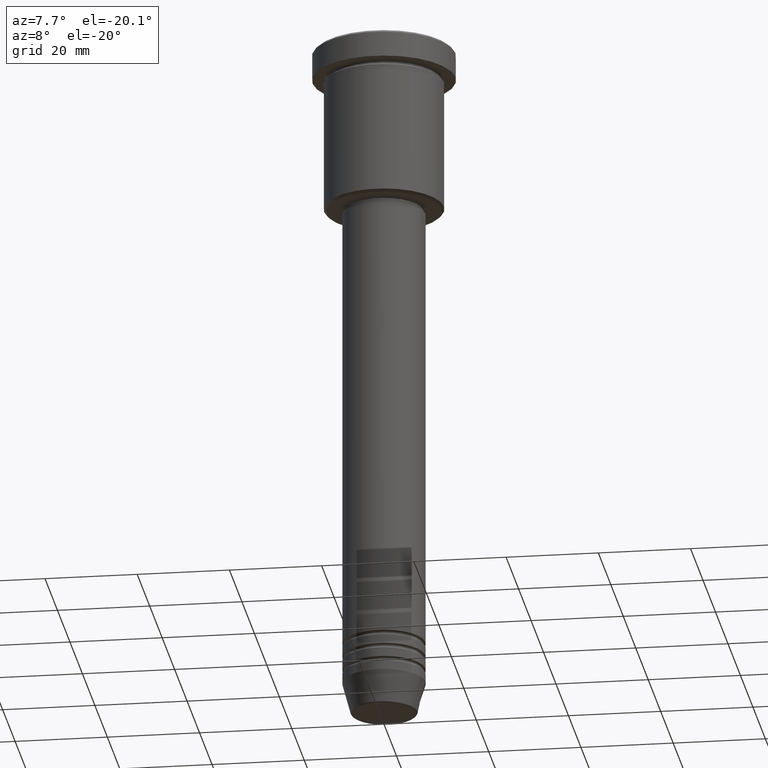
[diagram: clean part render]
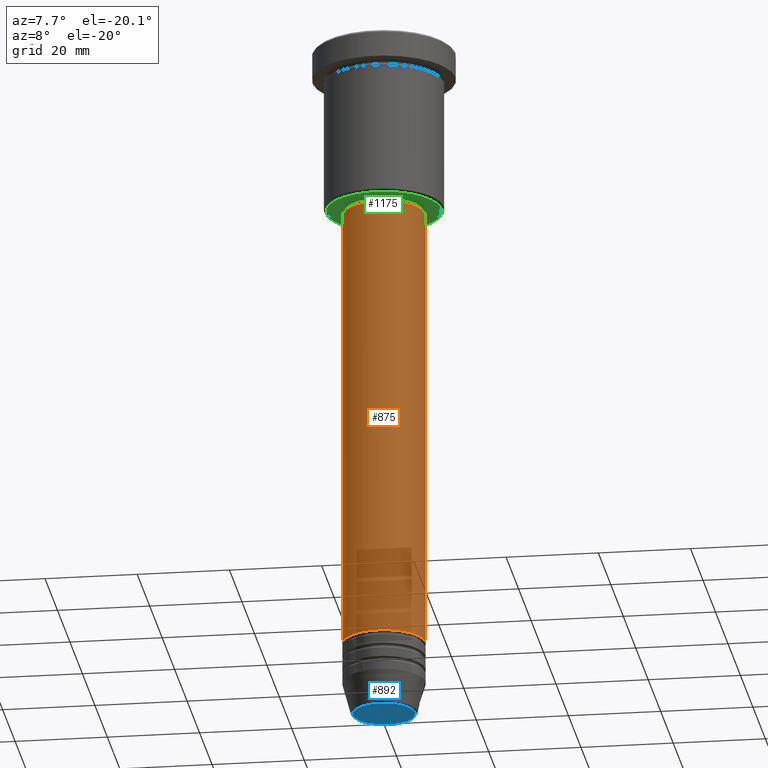
[diagram: same view with three faces highlighted in distinct colors, each labeled with its STEP entity id]
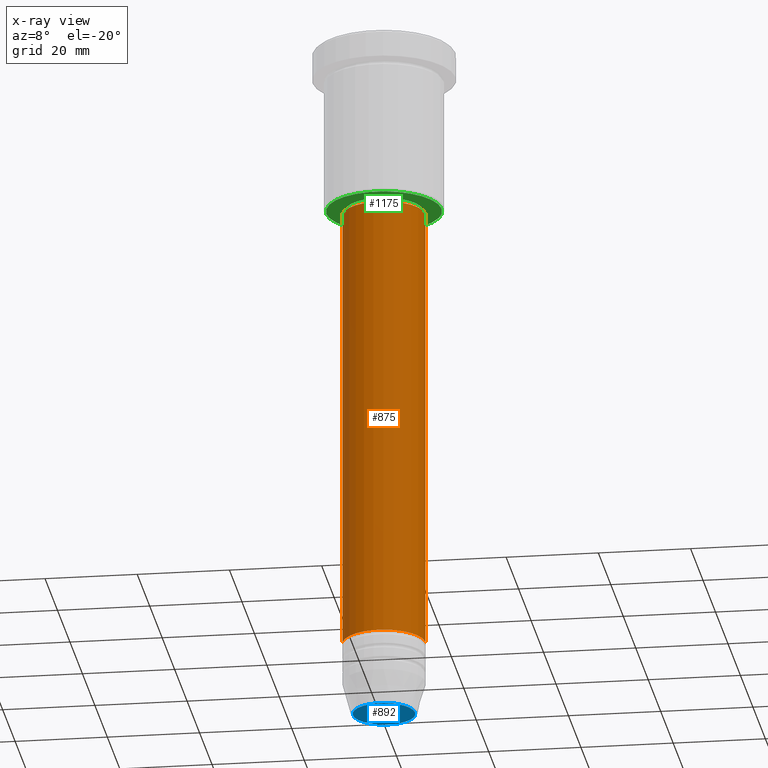
[diagram: x-ray of the same camera — body ghosted, the three highlighted faces saturated]
A machine part, auxiliary view with three faces highlighted in distinct colors.
The next image is the same camera in x-ray (body ghosted, the three faces saturated) — at least one of them is partly hidden behind the body in this view.
Their STEP definitions:

[orange] entity #875 — the highlighted cylindrical surface (partial cylindrical patch) has radius 9 mm, axis along (-0, -0, 1).
#56 = CIRCLE ( 'NONE', #682, 9.000000000000000000 ) ;
#94 = ORIENTED_EDGE ( 'NONE', *, *, #670, .F. ) ;
#127 = DIRECTION ( 'NONE',  ( -0.000000000000000000, -0.000000000000000000, 1.000000000000000000 ) ) ;
#136 = AXIS2_PLACEMENT_3D ( 'NONE', #300, #1021, #936 ) ;
#156 = CARTESIAN_POINT ( 'NONE',  ( 9.000000000000000000, 0.000000000000000000, -37.00000000000001421 ) ) ;
#196 = CIRCLE ( 'NONE', #136, 9.000000000000000000 ) ;
#199 = VERTEX_POINT ( 'NONE', #321 ) ;
#208 = LINE ( 'NONE', #939, #1043 ) ;
#246 = CARTESIAN_POINT ( 'NONE',  ( 9.000000000000000000, 0.000000000000000000, 0.000000000000000000 ) ) ;
#269 = CARTESIAN_POINT ( 'NONE',  ( 0.000000000000000000, 0.000000000000000000, -37.00000000000001421 ) ) ;
#275 = VERTEX_POINT ( 'NONE', #156 ) ;
#285 = DIRECTION ( 'NONE',  ( -0.000000000000000000, -0.000000000000000000, 1.000000000000000000 ) ) ;
#300 = CARTESIAN_POINT ( 'NONE',  ( 0.000000000000000000, 0.000000000000000000, -134.9999999999999716 ) ) ;
#321 = CARTESIAN_POINT ( 'NONE',  ( -9.000000000000000000, 1.102182119232617714E-15, -37.00000000000001421 ) ) ;
#348 = CARTESIAN_POINT ( 'NONE',  ( -9.000000000000000000, 1.102182119232617714E-15, -134.9999999999999716 ) ) ;
#362 = EDGE_LOOP ( 'NONE', ( #94, #877, #694, #599 ) ) ;
#433 = AXIS2_PLACEMENT_3D ( 'NONE', #508, #856, #1143 ) ;
#508 = CARTESIAN_POINT ( 'NONE',  ( 0.000000000000000000, 0.000000000000000000, 0.000000000000000000 ) ) ;
#566 = VECTOR ( 'NONE', #602, 1000.000000000000000 ) ;
#591 = FACE_OUTER_BOUND ( 'NONE', #362, .T. ) ;
#599 = ORIENTED_EDGE ( 'NONE', *, *, #1059, .F. ) ;
#602 = DIRECTION ( 'NONE',  ( -0.000000000000000000, -0.000000000000000000, 1.000000000000000000 ) ) ;
#670 = EDGE_CURVE ( 'NONE', #808, #199, #208, .T. ) ;
#682 = AXIS2_PLACEMENT_3D ( 'NONE', #269, #285, #1016 ) ;
#686 = CYLINDRICAL_SURFACE ( 'NONE', #433, 9.000000000000000000 ) ;
#694 = ORIENTED_EDGE ( 'NONE', *, *, #742, .T. ) ;
#695 = LINE ( 'NONE', #246, #566 ) ;
#742 = EDGE_CURVE ( 'NONE', #1112, #275, #695, .T. ) ;
#808 = VERTEX_POINT ( 'NONE', #348 ) ;
#824 = CARTESIAN_POINT ( 'NONE',  ( 9.000000000000000000, 0.000000000000000000, -134.9999999999999716 ) ) ;
#856 = DIRECTION ( 'NONE',  ( -0.000000000000000000, -0.000000000000000000, 1.000000000000000000 ) ) ;
#875 = ADVANCED_FACE ( 'NONE', ( #591 ), #686, .T. ) ;
#877 = ORIENTED_EDGE ( 'NONE', *, *, #1183, .T. ) ;
#936 = DIRECTION ( 'NONE',  ( 1.000000000000000000, 0.000000000000000000, 0.000000000000000000 ) ) ;
#939 = CARTESIAN_POINT ( 'NONE',  ( -9.000000000000000000, 1.102182119232617714E-15, 0.000000000000000000 ) ) ;
#1016 = DIRECTION ( 'NONE',  ( 1.000000000000000000, 0.000000000000000000, 0.000000000000000000 ) ) ;
#1021 = DIRECTION ( 'NONE',  ( -0.000000000000000000, -0.000000000000000000, 1.000000000000000000 ) ) ;
#1043 = VECTOR ( 'NONE', #127, 1000.000000000000000 ) ;
#1059 = EDGE_CURVE ( 'NONE', #199, #275, #56, .T. ) ;
#1112 = VERTEX_POINT ( 'NONE', #824 ) ;
#1143 = DIRECTION ( 'NONE',  ( 1.000000000000000000, 0.000000000000000000, 0.000000000000000000 ) ) ;
#1183 = EDGE_CURVE ( 'NONE', #808, #1112, #196, .T. ) ;

[blue] entity #892 — the highlighted planar face has unit normal (0, -0, 1).
#17 = CARTESIAN_POINT ( 'NONE',  ( 6.740692158992658278, 0.000000000000000000, -151.0000000000000284 ) ) ;
#192 = CIRCLE ( 'NONE', #487, 6.740692158992658278 ) ;
#193 = VERTEX_POINT ( 'NONE', #658 ) ;
#204 = DIRECTION ( 'NONE',  ( 0.000000000000000000, 0.000000000000000000, -1.000000000000000000 ) ) ;
#303 = PLANE ( 'NONE',  #1159 ) ;
#329 = DIRECTION ( 'NONE',  ( 1.000000000000000000, 0.000000000000000000, 0.000000000000000000 ) ) ;
#403 = CARTESIAN_POINT ( 'NONE',  ( 0.000000000000000000, 0.000000000000000000, -151.0000000000000284 ) ) ;
#487 = AXIS2_PLACEMENT_3D ( 'NONE', #817, #204, #1180 ) ;
#495 = DIRECTION ( 'NONE',  ( 1.000000000000000000, 0.000000000000000000, 0.000000000000000000 ) ) ;
#514 = CIRCLE ( 'NONE', #797, 6.740692158992658278 ) ;
#516 = EDGE_CURVE ( 'NONE', #1126, #193, #192, .T. ) ;
#579 = DIRECTION ( 'NONE',  ( 0.000000000000000000, 0.000000000000000000, -1.000000000000000000 ) ) ;
#658 = CARTESIAN_POINT ( 'NONE',  ( -6.740692158992658278, 8.550696569392685681E-16, -151.0000000000000284 ) ) ;
#662 = ORIENTED_EDGE ( 'NONE', *, *, #516, .T. ) ;
#782 = EDGE_LOOP ( 'NONE', ( #662, #1165 ) ) ;
#797 = AXIS2_PLACEMENT_3D ( 'NONE', #403, #579, #495 ) ;
#817 = CARTESIAN_POINT ( 'NONE',  ( 0.000000000000000000, 0.000000000000000000, -151.0000000000000284 ) ) ;
#852 = FACE_OUTER_BOUND ( 'NONE', #782, .T. ) ;
#892 = ADVANCED_FACE ( 'NONE', ( #852 ), #303, .F. ) ;
#966 = EDGE_CURVE ( 'NONE', #193, #1126, #514, .T. ) ;
#1039 = DIRECTION ( 'NONE',  ( 0.000000000000000000, -0.000000000000000000, 1.000000000000000000 ) ) ;
#1045 = CARTESIAN_POINT ( 'NONE',  ( 0.000000000000000000, 0.000000000000000000, -151.0000000000000284 ) ) ;
#1126 = VERTEX_POINT ( 'NONE', #17 ) ;
#1159 = AXIS2_PLACEMENT_3D ( 'NONE', #1045, #1039, #329 ) ;
#1165 = ORIENTED_EDGE ( 'NONE', *, *, #966, .T. ) ;
#1180 = DIRECTION ( 'NONE',  ( 1.000000000000000000, 0.000000000000000000, 0.000000000000000000 ) ) ;

[green] entity #1175 — the highlighted planar face has unit normal (0, 0, -1).
#51 = DIRECTION ( 'NONE',  ( -1.000000000000000000, 0.000000000000000000, 0.000000000000000000 ) ) ;
#86 = ORIENTED_EDGE ( 'NONE', *, *, #724, .T. ) ;
#103 = CIRCLE ( 'NONE', #948, 12.50000000000002487 ) ;
#117 = AXIS2_PLACEMENT_3D ( 'NONE', #413, #436, #1147 ) ;
#119 = CIRCLE ( 'NONE', #209, 8.499999999999998224 ) ;
#189 = DIRECTION ( 'NONE',  ( -1.000000000000000000, 0.000000000000000000, 0.000000000000000000 ) ) ;
#195 = CIRCLE ( 'NONE', #117, 8.499999999999998224 ) ;
#209 = AXIS2_PLACEMENT_3D ( 'NONE', #1085, #445, #557 ) ;
#210 = PLANE ( 'NONE',  #492 ) ;
#230 = ORIENTED_EDGE ( 'NONE', *, *, #1019, .T. ) ;
#253 = CARTESIAN_POINT ( 'NONE',  ( 0.000000000000000000, 0.000000000000000000, -36.00000000000000711 ) ) ;
#280 = VERTEX_POINT ( 'NONE', #1163 ) ;
#331 = ORIENTED_EDGE ( 'NONE', *, *, #1104, .T. ) ;
#413 = CARTESIAN_POINT ( 'NONE',  ( 0.000000000000000000, 0.000000000000000000, -36.00000000000000711 ) ) ;
#436 = DIRECTION ( 'NONE',  ( -0.000000000000000000, -0.000000000000000000, 1.000000000000000000 ) ) ;
#445 = DIRECTION ( 'NONE',  ( -0.000000000000000000, -0.000000000000000000, 1.000000000000000000 ) ) ;
#451 = CARTESIAN_POINT ( 'NONE',  ( 0.000000000000000000, 0.000000000000000000, -36.00000000000000711 ) ) ;
#486 = CARTESIAN_POINT ( 'NONE',  ( -8.499999999999998224, 1.040949779275249943E-15, -36.00000000000000711 ) ) ;
#492 = AXIS2_PLACEMENT_3D ( 'NONE', #741, #560, #1110 ) ;
#557 = DIRECTION ( 'NONE',  ( 1.000000000000000000, 0.000000000000000000, 0.000000000000000000 ) ) ;
#560 = DIRECTION ( 'NONE',  ( 0.000000000000000000, 0.000000000000000000, -1.000000000000000000 ) ) ;
#615 = DIRECTION ( 'NONE',  ( 0.000000000000000000, 0.000000000000000000, -1.000000000000000000 ) ) ;
#621 = AXIS2_PLACEMENT_3D ( 'NONE', #253, #615, #51 ) ;
#625 = ORIENTED_EDGE ( 'NONE', *, *, #733, .T. ) ;
#671 = FACE_OUTER_BOUND ( 'NONE', #1103, .T. ) ;
#673 = CARTESIAN_POINT ( 'NONE',  ( 12.50000000000002487, 0.000000000000000000, -36.00000000000000711 ) ) ;
#724 = EDGE_CURVE ( 'NONE', #1097, #922, #1136, .T. ) ;
#733 = EDGE_CURVE ( 'NONE', #917, #280, #195, .T. ) ;
#741 = CARTESIAN_POINT ( 'NONE',  ( 0.000000000000000000, 13.00000000000000000, -36.00000000000000711 ) ) ;
#917 = VERTEX_POINT ( 'NONE', #486 ) ;
#922 = VERTEX_POINT ( 'NONE', #673 ) ;
#948 = AXIS2_PLACEMENT_3D ( 'NONE', #451, #1091, #189 ) ;
#1019 = EDGE_CURVE ( 'NONE', #280, #917, #119, .T. ) ;
#1036 = FACE_BOUND ( 'NONE', #1070, .T. ) ;
#1070 = EDGE_LOOP ( 'NONE', ( #230, #625 ) ) ;
#1085 = CARTESIAN_POINT ( 'NONE',  ( 0.000000000000000000, 0.000000000000000000, -36.00000000000000711 ) ) ;
#1091 = DIRECTION ( 'NONE',  ( 0.000000000000000000, 0.000000000000000000, -1.000000000000000000 ) ) ;
#1097 = VERTEX_POINT ( 'NONE', #1173 ) ;
#1103 = EDGE_LOOP ( 'NONE', ( #331, #86 ) ) ;
#1104 = EDGE_CURVE ( 'NONE', #922, #1097, #103, .T. ) ;
#1110 = DIRECTION ( 'NONE',  ( -1.000000000000000000, 0.000000000000000000, -0.000000000000000000 ) ) ;
#1136 = CIRCLE ( 'NONE', #621, 12.50000000000002487 ) ;
#1147 = DIRECTION ( 'NONE',  ( 1.000000000000000000, 0.000000000000000000, 0.000000000000000000 ) ) ;
#1163 = CARTESIAN_POINT ( 'NONE',  ( 8.499999999999998224, 0.000000000000000000, -36.00000000000000711 ) ) ;
#1173 = CARTESIAN_POINT ( 'NONE',  ( -12.50000000000002487, 1.561424668912876886E-15, -36.00000000000000711 ) ) ;
#1175 = ADVANCED_FACE ( 'NONE', ( #671, #1036 ), #210, .T. ) ;